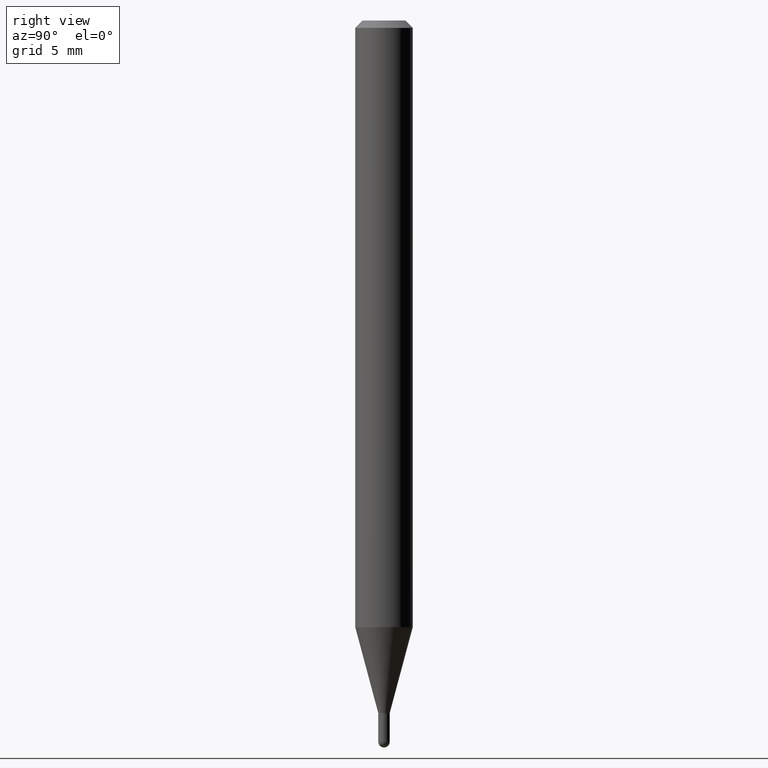
[diagram: clean part render]
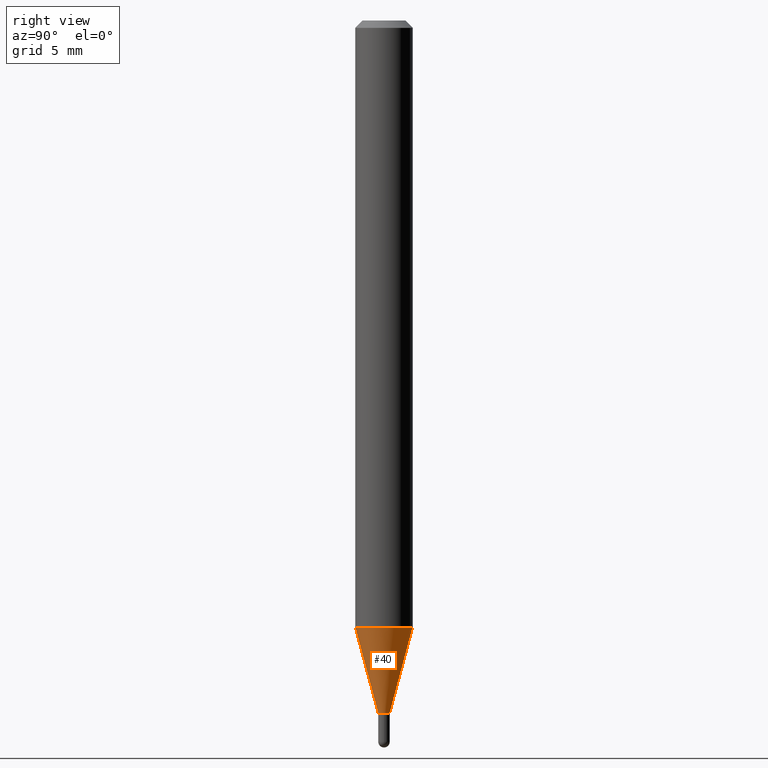
[diagram: same view with one face highlighted and labeled with its STEP entity id]
A machine part, right view. The second image highlights one B-rep face of the part: STEP entity #40.
In plain terms, the highlighted conical surface has half-angle 15 deg.
Its self-contained STEP definition (entity closure, byte-faithful):
#11 = CARTESIAN_POINT ( 'NONE',  ( 3.484991950697390441E-29, -4.975775422219090776E-15, -1.425100000000000033 ) ) ;
#37 = DIRECTION ( 'NONE',  ( 1.839019923739647647E-15, 0.2588190451025316197, 0.9659258262890653146 ) ) ;
#40 = ADVANCED_FACE ( 'NONE', ( #160 ), #163, .T. ) ;
#70 = ORIENTED_EDGE ( 'NONE', *, *, #301, .T. ) ;
#75 = AXIS2_PLACEMENT_3D ( 'NONE', #11, #99, #261 ) ;
#80 = EDGE_CURVE ( 'NONE', #153, #373, #224, .T. ) ;
#81 = CARTESIAN_POINT ( 'NONE',  ( 3.053765095120501030E-29, -4.360081607215893074E-15, -1.248760599342374711 ) ) ;
#98 = EDGE_CURVE ( 'NONE', #500, #373, #397, .T. ) ;
#99 = DIRECTION ( 'NONE',  ( -2.445436776855933528E-29, 3.491527206665560554E-15, 1.000000000000000000 ) ) ;
#127 = DIRECTION ( 'NONE',  ( -1.807323732225377077E-15, -0.2588190451025249028, 0.9659258262890670910 ) ) ;
#141 = AXIS2_PLACEMENT_3D ( 'NONE', #402, #512, #283 ) ;
#152 = CIRCLE ( 'NONE', #75, 0.01179999999999965452 ) ;
#153 = VERTEX_POINT ( 'NONE', #266 ) ;
#160 = FACE_OUTER_BOUND ( 'NONE', #467, .T. ) ;
#161 = DIRECTION ( 'NONE',  ( -2.445436776855933528E-29, 3.491527206665560554E-15, 1.000000000000000000 ) ) ;
#163 = CONICAL_SURFACE ( 'NONE', #141, 0.01179999999999965452, 0.2617993877991572349 ) ;
#188 = ORIENTED_EDGE ( 'NONE', *, *, #98, .T. ) ;
#189 = CARTESIAN_POINT ( 'NONE',  ( -8.239895959666068997E-17, -0.01180000000000462970, -1.425100000000000033 ) ) ;
#224 = CIRCLE ( 'NONE', #482, 0.05904999999999999832 ) ;
#241 = CARTESIAN_POINT ( 'NONE',  ( 4.195754854663694697E-16, 0.05904999999999562682, -1.248760599342375155 ) ) ;
#252 = CARTESIAN_POINT ( 'NONE',  ( 2.517097641430470322E-16, 0.01179999999999467933, -1.425100000000000033 ) ) ;
#261 = DIRECTION ( 'NONE',  ( -6.982962677686266711E-15, -1.000000000000000000, 0.000000000000000000 ) ) ;
#266 = CARTESIAN_POINT ( 'NONE',  ( -4.123439461173436122E-16, -0.05905000000000436289, -1.248760599342374489 ) ) ;
#283 = DIRECTION ( 'NONE',  ( -6.982962677686266711E-15, -1.000000000000000000, 0.000000000000000000 ) ) ;
#301 = EDGE_CURVE ( 'NONE', #394, #500, #152, .T. ) ;
#328 = CARTESIAN_POINT ( 'NONE',  ( 8.384404281972420026E-17, 0.01179999999999467933, -1.425100000000000033 ) ) ;
#337 = ORIENTED_EDGE ( 'NONE', *, *, #80, .F. ) ;
#356 = ORIENTED_EDGE ( 'NONE', *, *, #426, .F. ) ;
#373 = VERTEX_POINT ( 'NONE', #241 ) ;
#394 = VERTEX_POINT ( 'NONE', #189 ) ;
#395 = LINE ( 'NONE', #474, #452 ) ;
#397 = LINE ( 'NONE', #328, #420 ) ;
#402 = CARTESIAN_POINT ( 'NONE',  ( 3.484991950697390441E-29, -4.975775422219090776E-15, -1.425100000000000033 ) ) ;
#420 = VECTOR ( 'NONE', #37, 39.37007874015748854 ) ;
#426 = EDGE_CURVE ( 'NONE', #394, #153, #395, .T. ) ;
#452 = VECTOR ( 'NONE', #127, 39.37007874015748143 ) ;
#467 = EDGE_LOOP ( 'NONE', ( #70, #188, #337, #356 ) ) ;
#474 = CARTESIAN_POINT ( 'NONE',  ( -8.239895959666068997E-17, -0.01180000000000462970, -1.425100000000000033 ) ) ;
#478 = DIRECTION ( 'NONE',  ( -6.982962677686265922E-15, -1.000000000000000000, 4.626330217890369336E-15 ) ) ;
#482 = AXIS2_PLACEMENT_3D ( 'NONE', #81, #161, #478 ) ;
#500 = VERTEX_POINT ( 'NONE', #252 ) ;
#512 = DIRECTION ( 'NONE',  ( -2.445436776855933528E-29, 3.491527206665560554E-15, 1.000000000000000000 ) ) ;